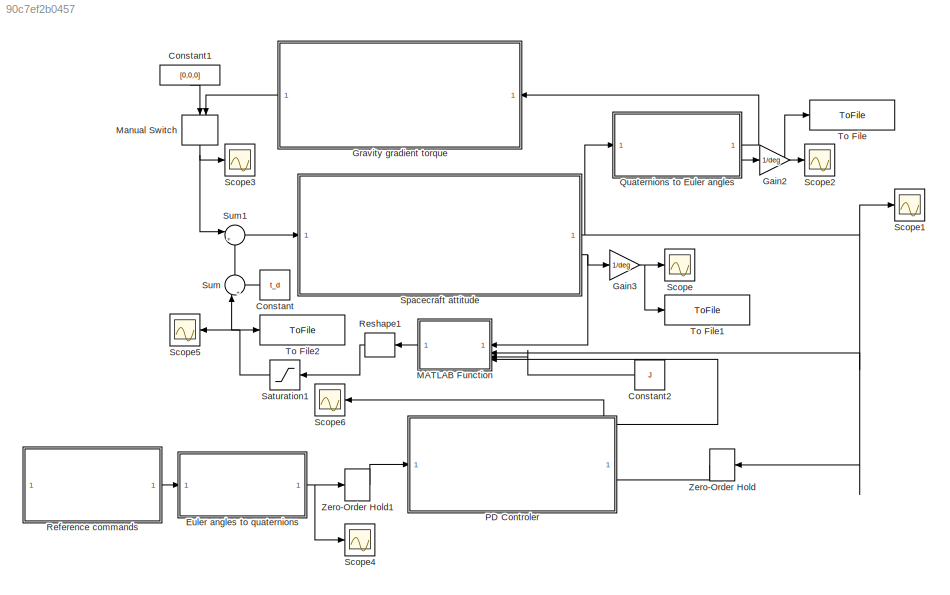
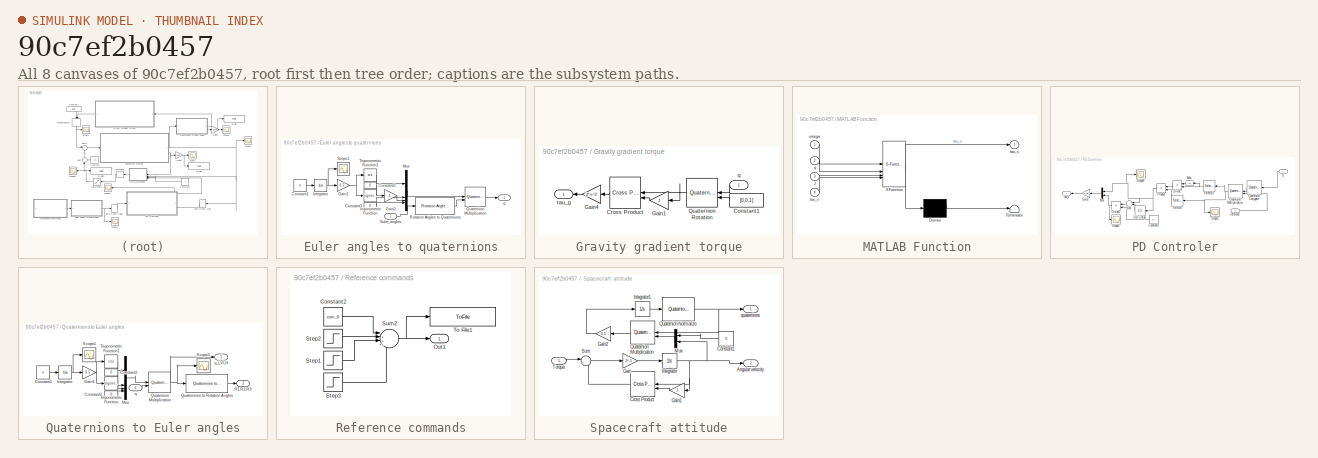
[diagram: thumbnail index - all 8 canvases of the model, root first then tree order]
MODEL slx_90c7ef2b0457
KIND model
CONFIG AbsTol = 1e-6
CONFIG EnableMultiTasking = off
CONFIG FixedStep = 0.1
CONFIG MaxStep = auto
CONFIG MinStep = auto
CONFIG RelTol = 1e-6
CONFIG SampleTimeConstraint = Unconstrained
CONFIG SolverName = ode8
CONFIG StartTime = 0.0
CONFIG StopTime = 1500
BLOCK [Constant] Constant
  Value = t_d
BLOCK [Constant] Constant1
  NameLocation = right
  Value = [0,0,0]
BLOCK [Constant] Constant2
  Value = J
BLOCK [SubSystem] Euler angles to quaternions
BLOCK [Constant] Euler angles to quaternions/Constant1
  Value = n
BLOCK [Constant] Euler angles to quaternions/Constant2
  Value = 0
BLOCK [Constant] Euler angles to quaternions/Constant3
  Value = 0
BLOCK [Inport] Euler angles to quaternions/Euler_angles
BLOCK [Gain] Euler angles to quaternions/Gain1
  Gain = 0.5
  Multiplication = Matrix(K*u)
BLOCK [Gain] Euler angles to quaternions/Gain2
  Gain = -1
  Multiplication = Matrix(K*u)
BLOCK [Integrator] Euler angles to quaternions/Integrator
BLOCK [Mux] Euler angles to quaternions/Mux
  DisplayOption = bar
BLOCK [Reference] Euler angles to quaternions/Quaternion Multiplication  REF=aerolibutil/Quaternion
Multiplication
  SourceBlock = aerolibutil/Quaternion\nMultiplication
  SourceType = Quaternion Multiplication
BLOCK [Reference] Euler angles to quaternions/Rotation Angles to Quaternions  REF=sharedtransform/Rotation Angles to Quaternions
  AttributesFormatString = Rotation Order: %<rotationOrder>
  LibrarySourceBlock = aerolibtransform2/Rotation Angles to Quaternions
  SourceBlock = sharedtransform/Rotation Angles to Quaternions
  SourceType = Ang2Quat
BLOCK [Scope] Euler angles to quaternions/Scope1
  Floating = off
  NumInputPorts = 1
  ScopeSpecificationString = Simulink.scopes.TimeScopeBlockCfg('CurrentConfiguration', extmgr.ConfigurationSet(extmgr.Configuration('Core','General UI',true),extmgr.Configuration('Core','Source UI',true),extmgr.Configuration('Sources','WiredSimulink',true,'DataLoggingVariableName','ScopeData6'),extmgr.Configuration('Visuals','Time Domain',true,'SerializedDisplays',{struct('MinYLimReal','-0.19879','MaxYLimReal','1.78915','YLab...<+1783ch>
BLOCK [Trigonometry] Euler angles to quaternions/Trigonometric Function
BLOCK [Trigonometry] Euler angles to quaternions/Trigonometric Function1
  Operator = cos
BLOCK [Outport] Euler angles to quaternions/q
BLOCK [Gain] Gain2
  Gain = 1/deg
  Multiplication = Matrix(K*u)
BLOCK [Gain] Gain3
  Gain = 1/deg
  Multiplication = Matrix(K*u)
BLOCK [SubSystem] Gravity gradient torque
BLOCK [Constant] Gravity gradient torque/Constant1
  Value = [0,0,1]
BLOCK [Reference] Gravity gradient torque/Cross Product  REF=matrix_library/Cross Product
  LibrarySourceBlock = simulink/Matrix\nOperations/Cross Product
  SourceBlock = matrix_library/Cross Product
  SourceType = CrossProduct
BLOCK [Gain] Gravity gradient torque/Gain1
  Gain = J
  Multiplication = Matrix(K*u)
BLOCK [Gain] Gravity gradient torque/Gain4
  Gain = 3*n.^2
  Multiplication = Matrix(K*u)
BLOCK [Reference] Gravity gradient torque/Quaternion Rotation  REF=aerolibutil/Quaternion
Rotation
  SourceBlock = aerolibutil/Quaternion\nRotation
  SourceType = Quaternion Rotation
BLOCK [Inport] Gravity gradient torque/q
  NameLocation = top
BLOCK [Outport] Gravity gradient torque/tau_g
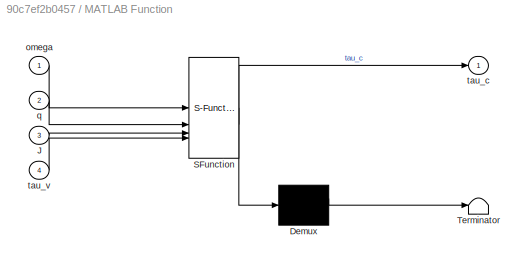
BLOCK [SubSystem] MATLAB Function
  ErrorFcn = Stateflow.Translate.translate
  PermitHierarchicalResolution = ExplicitOnly
  SFBlockType = MATLAB Function
  TreatAsAtomicUnit = on
BLOCK [Demux] MATLAB Function/ Demux 
  Outputs = 1
BLOCK [S-Function] MATLAB Function/ SFunction 
  EnableBusSupport = on
  FunctionName = sf_sfun
  PortCounts = [4 2]
  SFcnIsStateOwnerBlock = off
  SFunctionDeploymentMode = off
  Tag = Stateflow S-Function 2
BLOCK [Terminator] MATLAB Function/ Terminator 
BLOCK [Inport] MATLAB Function/J
  Port = 3
BLOCK [Inport] MATLAB Function/omega
BLOCK [Inport] MATLAB Function/q
  Port = 2
BLOCK [Outport] MATLAB Function/tau_c
BLOCK [Inport] MATLAB Function/tau_v
  Port = 4
BLOCK [ManualSwitch] Manual Switch
  CurrentSetting = 0
  NameLocation = left
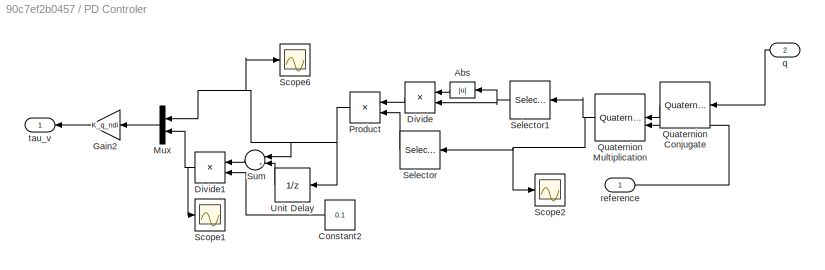
BLOCK [SubSystem] PD Controler
  PortSchema = {"entries":[{"content":{"sides":[{"content":{"connectorIds":["Out1","In1"]},"type":"ConnectorPlacement.EquallySpacedRectSide","uuid":"abb5c05f-55a7-4b23-99fb-718b12e347b5"},{"content":{"connectorIds":["In2"],"side":"RIGHT"},"type":"ConnectorPlacement.EquallySpacedRectSide","uuid":"ecafc2a8-a004-41b4-9c63-c5f60123672e"},{"content":{"side":"TOP"},"type":"ConnectorPlacement.EquallySpacedRectSide","uu...<+228ch>
BLOCK [Abs] PD Controler/Abs
  SaturateOnIntegerOverflow = off
BLOCK [Constant] PD Controler/Constant2
  Value = 0.1
BLOCK [Product] PD Controler/Divide
  Inputs = */
BLOCK [Product] PD Controler/Divide1
  Inputs = */
BLOCK [Gain] PD Controler/Gain2
  Gain = K_q_ndi
  Multiplication = Matrix(K*u)
BLOCK [Mux] PD Controler/Mux
  DisplayOption = bar
  Inputs = 2
BLOCK [Product] PD Controler/Product
BLOCK [Reference] PD Controler/Quaternion Conjugate  REF=aerolibutil/Quaternion
Conjugate
  SourceBlock = aerolibutil/Quaternion\nConjugate
  SourceType = Quaternion Conjugate
BLOCK [Reference] PD Controler/Quaternion Multiplication  REF=aerolibutil/Quaternion
Multiplication
  SourceBlock = aerolibutil/Quaternion\nMultiplication
  SourceType = Quaternion Multiplication
BLOCK [Scope] PD Controler/Scope1
  Floating = off
  NumInputPorts = 1
  ScopeSpecificationString = Simulink.scopes.TimeScopeBlockCfg('CurrentConfiguration', extmgr.ConfigurationSet(extmgr.Configuration('Core','General UI',true),extmgr.Configuration('Core','Source UI',true),extmgr.Configuration('Sources','WiredSimulink',true,'DataLoggingVariableName','ScopeData3'),extmgr.Configuration('Visuals','Time Domain',true,'SerializedDisplays',{struct('MinYLimReal','-12.21483','MaxYLimReal','20.04772','YL...<+1892ch>
BLOCK [Scope] PD Controler/Scope2
  Floating = off
  NumInputPorts = 1
  ScopeSpecificationString = Simulink.scopes.TimeScopeBlockCfg('CurrentConfiguration', extmgr.ConfigurationSet(extmgr.Configuration('Core','General UI',true),extmgr.Configuration('Core','Source UI',true),extmgr.Configuration('Sources','WiredSimulink',true,'DataLoggingVariableName','ScopeData1'),extmgr.Configuration('Visuals','Time Domain',true,'SerializedDisplays',{struct('MinYLimReal','-1.21261','MaxYLimReal','1.2136','YLabe...<+1966ch>
BLOCK [Scope] PD Controler/Scope6
  Floating = off
  NumInputPorts = 1
  ScopeSpecificationString = Simulink.scopes.TimeScopeBlockCfg('CurrentConfiguration', extmgr.ConfigurationSet(extmgr.Configuration('Core','General UI',true),extmgr.Configuration('Core','Source UI',true),extmgr.Configuration('Sources','WiredSimulink',true,'DataLoggingVariableName','ScopeData2'),extmgr.Configuration('Visuals','Time Domain',true,'SerializedDisplays',{struct('MinYLimReal','-1.21261','MaxYLimReal','1.2136','YLabe...<+1882ch>
BLOCK [Selector] PD Controler/Selector
  IndexOptions = Index vector (dialog)
  Indices = [2 3 4]
  InputPortWidth = 4
  NameLocation = top
  OutputSizes = 1
BLOCK [Selector] PD Controler/Selector1
  IndexOptions = Index vector (dialog)
  Indices = [1]
  InputPortWidth = 4
  NameLocation = top
  OutputSizes = 1
BLOCK [Sum] PD Controler/Sum
  Inputs = |+-
BLOCK [UnitDelay] PD Controler/Unit Delay
  HasFrameUpgradeWarning = on
  SampleTime = 0.1
BLOCK [Inport] PD Controler/q
  Port = 2
BLOCK [Inport] PD Controler/reference
BLOCK [Outport] PD Controler/tau_v
BLOCK [SubSystem] Quaternions to Euler angles
BLOCK [Constant] Quaternions to Euler angles/Constant1
  Value = n
BLOCK [Constant] Quaternions to Euler angles/Constant2
  Value = 0
BLOCK [Constant] Quaternions to Euler angles/Constant3
  Value = 0
BLOCK [Gain] Quaternions to Euler angles/Gain1
  Gain = 0.5
  Multiplication = Matrix(K*u)
BLOCK [Integrator] Quaternions to Euler angles/Integrator
BLOCK [Mux] Quaternions to Euler angles/Mux
  DisplayOption = bar
BLOCK [Reference] Quaternions to Euler angles/Quaternion Multiplication  REF=aerolibutil/Quaternion
Multiplication
  SourceBlock = aerolibutil/Quaternion\nMultiplication
  SourceType = Quaternion Multiplication
BLOCK [Reference] Quaternions to Euler angles/Quaternions to Rotation Angles  REF=sharedtransform/Quaternions to Rotation Angles
  AttributesFormatString = Rotation Order: %<rotationOrder>
  LibrarySourceBlock = aerolibtransform2/Quaternions to Rotation Angles
  SourceBlock = sharedtransform/Quaternions to Rotation Angles
  SourceType = Quat2Ang
BLOCK [Outport] Quaternions to Euler angles/R1,R2,R3
  Port = 2
BLOCK [Scope] Quaternions to Euler angles/Scope1
  Floating = off
  NumInputPorts = 1
  ScopeSpecificationString = Simulink.scopes.TimeScopeBlockCfg('CurrentConfiguration', extmgr.ConfigurationSet(extmgr.Configuration('Core','General UI',true),extmgr.Configuration('Core','Source UI',true),extmgr.Configuration('Sources','WiredSimulink',true,'DataLoggingVariableName','ScopeData6'),extmgr.Configuration('Visuals','Time Domain',true,'SerializedDisplays',{struct('MinYLimReal','-0.19879','MaxYLimReal','1.78915','YLab...<+1783ch>
BLOCK [Scope] Quaternions to Euler angles/Scope3
  Floating = off
  NumInputPorts = 1
  ScopeSpecificationString = Simulink.scopes.TimeScopeBlockCfg('CurrentConfiguration', extmgr.ConfigurationSet(extmgr.Configuration('Core','General UI',true),extmgr.Configuration('Core','Source UI',true),extmgr.Configuration('Sources','WiredSimulink',true,'DataLoggingVariableName','ScopeData3'),extmgr.Configuration('Visuals','Time Domain',true,'SerializedDisplays',{struct('MinYLimReal','-1.21447','MaxYLimReal','1.24605','YLab...<+1934ch>
BLOCK [Trigonometry] Quaternions to Euler angles/Trigonometric Function
BLOCK [Trigonometry] Quaternions to Euler angles/Trigonometric Function1
  Operator = cos
BLOCK [Inport] Quaternions to Euler angles/q
BLOCK [Outport] Quaternions to Euler angles/q_LVLH
BLOCK [SubSystem] Reference commands
BLOCK [Constant] Reference commands/Constant2
  Value = com_0
BLOCK [Outport] Reference commands/Out1
BLOCK [Step] Reference commands/Step1
  After = com_2 - com_1
  SampleTime = 0
  Time = 500.1
  VectorParams1D = off
BLOCK [Step] Reference commands/Step2
  After = com_1 - com_0
  SampleTime = 0
  Time = 100
  VectorParams1D = off
BLOCK [Step] Reference commands/Step3
  After = com_3 - com_2
  SampleTime = 0
  Time = 900.1
  VectorParams1D = off
BLOCK [Sum] Reference commands/Sum2
  Inputs = |++++
BLOCK [ToFile] Reference commands/To File1
  Filename = Reference_commands.mat
  MatrixName = values
  SaveFormat = Timeseries
BLOCK [Reshape] Reshape1
BLOCK [Saturate] Saturation1
  LowerLimit = -1.5
  NameLocation = top
  UpperLimit = 1.5
BLOCK [Scope] Scope
  Floating = off
  NumInputPorts = 1
  ScopeSpecificationString = Simulink.scopes.TimeScopeBlockCfg('CurrentConfiguration', extmgr.ConfigurationSet(extmgr.Configuration('Core','General UI',true),extmgr.Configuration('Core','Source UI',true),extmgr.Configuration('Sources','WiredSimulink',true),extmgr.Configuration('Visuals','Time Domain',true,'SerializedDisplays',{struct('MinYLimReal','-77.71981','MaxYLimReal','65.40638','YLabelReal','','MinYLimMag','0.00000','Ma...<+1834ch>
BLOCK [Scope] Scope1
  Floating = off
  NumInputPorts = 1
  ScopeSpecificationString = Simulink.scopes.TimeScopeBlockCfg('CurrentConfiguration', extmgr.ConfigurationSet(extmgr.Configuration('Core','General UI',true),extmgr.Configuration('Core','Source UI',true),extmgr.Configuration('Sources','WiredSimulink',true,'DataLoggingVariableName','ScopeData1'),extmgr.Configuration('Visuals','Time Domain',true,'SerializedDisplays',{struct('MinYLimReal','-1.02252','MaxYLimReal','1.22464','YLab...<+1922ch>
BLOCK [Scope] Scope2
  Floating = off
  NumInputPorts = 1
  ScopeSpecificationString = Simulink.scopes.TimeScopeBlockCfg('CurrentConfiguration', extmgr.ConfigurationSet(extmgr.Configuration('Core','General UI',true),extmgr.Configuration('Core','Source UI',true),extmgr.Configuration('Sources','WiredSimulink',true,'DataLoggingVariableName','ScopeData2'),extmgr.Configuration('Visuals','Time Domain',true,'SerializedDisplays',{struct('MinYLimReal','-94.74264','MaxYLimReal','94.13588','YL...<+1872ch>
BLOCK [Scope] Scope3
  Floating = off
  NumInputPorts = 1
  ScopeSpecificationString = Simulink.scopes.TimeScopeBlockCfg('CurrentConfiguration', extmgr.ConfigurationSet(extmgr.Configuration('Core','General UI',true),extmgr.Configuration('Core','Source UI',true),extmgr.Configuration('Sources','WiredSimulink',true,'DataLoggingVariableName','ScopeData4'),extmgr.Configuration('Visuals','Time Domain',true,'SerializedDisplays',{struct('MinYLimReal','-0.0000021','MaxYLimReal','0.0000021','...<+1919ch>
BLOCK [Scope] Scope4
  Floating = off
  NumInputPorts = 1
  ScopeSpecificationString = Simulink.scopes.TimeScopeBlockCfg('CurrentConfiguration', extmgr.ConfigurationSet(extmgr.Configuration('Core','General UI',true),extmgr.Configuration('Core','Source UI',true),extmgr.Configuration('Sources','WiredSimulink',true,'DataLoggingVariableName','ScopeData1'),extmgr.Configuration('Visuals','Time Domain',true,'SerializedDisplays',{struct('MinYLimReal','-1.02171','MaxYLimReal','1.22463','YLab...<+1972ch>
BLOCK [Scope] Scope5
  Floating = off
  NumInputPorts = 1
  ScopeSpecificationString = Simulink.scopes.TimeScopeBlockCfg('CurrentConfiguration', extmgr.ConfigurationSet(extmgr.Configuration('Core','General UI',true),extmgr.Configuration('Core','Source UI',true),extmgr.Configuration('Sources','WiredSimulink',true,'DataLoggingVariableName','ScopeData1'),extmgr.Configuration('Visuals','Time Domain',true,'SerializedDisplays',{struct('MinYLimReal','-1.875','MaxYLimReal','1.875','YLabelRe...<+1884ch>
BLOCK [Scope] Scope6
  Floating = off
  NumInputPorts = 1
  ScopeSpecificationString = Simulink.scopes.TimeScopeBlockCfg('CurrentConfiguration', extmgr.ConfigurationSet(extmgr.Configuration('Core','General UI',true),extmgr.Configuration('Core','Source UI',true),extmgr.Configuration('Sources','WiredSimulink',true,'DataLoggingVariableName','ScopeData1'),extmgr.Configuration('Visuals','Time Domain',true,'SerializedDisplays',{struct('MinYLimReal','-93.5185','MaxYLimReal','69.14311','YLa...<+1901ch>
BLOCK [SubSystem] Spacecraft attitude
BLOCK [Outport] Spacecraft attitude/Angular velocity
  Port = 2
BLOCK [Constant] Spacecraft attitude/Constant1
  Value = 0
BLOCK [Reference] Spacecraft attitude/Cross Product  REF=matrix_library/Cross Product
  LibrarySourceBlock = simulink/Matrix\nOperations/Cross Product
  SourceBlock = matrix_library/Cross Product
  SourceType = CrossProduct
BLOCK [Gain] Spacecraft attitude/Gain
  Gain = J^-1
  Multiplication = Matrix(K*u)
BLOCK [Gain] Spacecraft attitude/Gain1
  Gain = J
  Multiplication = Matrix(K*u)
BLOCK [Gain] Spacecraft attitude/Gain2
  Gain = 0.5
  Multiplication = Matrix(K*u)
BLOCK [Integrator] Spacecraft attitude/Integrator
  InitialCondition = w
BLOCK [Integrator] Spacecraft attitude/Integrator1
  InitialCondition = init_q
BLOCK [Mux] Spacecraft attitude/Mux
  DisplayOption = bar
  Inputs = 2
BLOCK [Reference] Spacecraft attitude/Quaternion Multiplication  REF=aerolibutil/Quaternion
Multiplication
  SourceBlock = aerolibutil/Quaternion\nMultiplication
  SourceType = Quaternion Multiplication
BLOCK [Reference] Spacecraft attitude/Quaternion Normalize  REF=sharedutil/Quaternion
Normalize
  LibrarySourceBlock = aerolibutil/Quaternion\nNormalize
  SourceBlock = sharedutil/Quaternion\nNormalize
  SourceType = Quaternion Normalize
BLOCK [Sum] Spacecraft attitude/Sum
  Inputs = |+-
  NameLocation = top
BLOCK [Inport] Spacecraft attitude/Torque
BLOCK [Outport] Spacecraft attitude/quaternions
BLOCK [Sum] Sum
  Inputs = |++
  NameLocation = right
BLOCK [Sum] Sum1
  Inputs = |++
BLOCK [ToFile] To File
  Filename = Euler_angles.mat
  MatrixName = values
  SaveFormat = Timeseries
BLOCK [ToFile] To File1
  Filename = Angular_velocity.mat
  MatrixName = values
  SaveFormat = Timeseries
BLOCK [ToFile] To File2
  Filename = Torques.mat
  MatrixName = values
  SaveFormat = Timeseries
BLOCK [ZeroOrderHold] Zero-Order Hold
  SampleTime = 0.1
BLOCK [ZeroOrderHold] Zero-Order Hold1
  SampleTime = 0.1
LINE Constant1:1 -> Manual Switch:1
LINE Constant2:1 -> MATLAB Function:3
LINE Constant:1 -> Sum:2
LINE Euler angles to quaternions/Constant1:1 -> Euler angles to quaternions/Integrator:1
LINE Euler angles to quaternions/Constant2:1 -> Euler angles to quaternions/Mux:2
LINE Euler angles to quaternions/Constant3:1 -> Euler angles to quaternions/Mux:4
LINE Euler angles to quaternions/Euler_angles:1 -> Euler angles to quaternions/Rotation Angles to Quaternions:1
NET Euler angles to quaternions/Gain1:1 -> Euler angles to quaternions/Trigonometric Function1:1, Euler angles to quaternions/Trigonometric Function:1
LINE Euler angles to quaternions/Gain2:1 -> Euler angles to quaternions/Mux:3
NET Euler angles to quaternions/Integrator:1 -> Euler angles to quaternions/Gain1:1, Euler angles to quaternions/Scope1:1
LINE Euler angles to quaternions/Mux:1 -> Euler angles to quaternions/Quaternion Multiplication:1
LINE Euler angles to quaternions/Quaternion Multiplication:1 -> Euler angles to quaternions/q:1
LINE Euler angles to quaternions/Rotation Angles to Quaternions:1 -> Euler angles to quaternions/Quaternion Multiplication:2
LINE Euler angles to quaternions/Trigonometric Function1:1 -> Euler angles to quaternions/Mux:1
LINE Euler angles to quaternions/Trigonometric Function:1 -> Euler angles to quaternions/Gain2:1
NET Euler angles to quaternions:1 -> Scope4:1, Zero-Order Hold1:1
NET Gain2:1 -> Scope2:1, To File:1
NET Gain3:1 -> Scope:1, To File1:1
LINE Gravity gradient torque/Constant1:1 -> Gravity gradient torque/Quaternion Rotation:2
LINE Gravity gradient torque/Cross Product:1 -> Gravity gradient torque/Gain4:1
LINE Gravity gradient torque/Gain1:1 -> Gravity gradient torque/Cross Product:2
LINE Gravity gradient torque/Gain4:1 -> Gravity gradient torque/tau_g:1
NET Gravity gradient torque/Quaternion Rotation:1 -> Gravity gradient torque/Cross Product:1, Gravity gradient torque/Gain1:1
LINE Gravity gradient torque/q:1 -> Gravity gradient torque/Quaternion Rotation:1
LINE Gravity gradient torque:1 -> Manual Switch:2
LINE MATLAB Function:1 -> Reshape1:1
NET Manual Switch:1 -> Scope3:1, Sum1:1
LINE PD Controler/Abs:1 -> PD Controler/Divide:1
LINE PD Controler/Constant2:1 -> PD Controler/Divide1:2
NET PD Controler/Divide1:1 -> PD Controler/Mux:2, PD Controler/Scope1:1
LINE PD Controler/Divide:1 -> PD Controler/Product:1
LINE PD Controler/Gain2:1 -> PD Controler/tau_v:1
LINE PD Controler/Mux:1 -> PD Controler/Gain2:1
NET PD Controler/Product:1 -> PD Controler/Mux:1, PD Controler/Scope6:1, PD Controler/Sum:1, PD Controler/Unit Delay:1
LINE PD Controler/Quaternion Conjugate:1 -> PD Controler/Quaternion Multiplication:1
NET PD Controler/Quaternion Multiplication:1 -> PD Controler/Scope2:1, PD Controler/Selector1:1, PD Controler/Selector:1
NET PD Controler/Selector1:1 -> PD Controler/Abs:1, PD Controler/Divide:2
LINE PD Controler/Selector:1 -> PD Controler/Product:2
LINE PD Controler/Sum:1 -> PD Controler/Divide1:1
LINE PD Controler/Unit Delay:1 -> PD Controler/Sum:2
LINE PD Controler/q:1 -> PD Controler/Quaternion Conjugate:1
LINE PD Controler/reference:1 -> PD Controler/Quaternion Multiplication:2
NET PD Controler:1 -> MATLAB Function:4, Scope6:1
LINE Quaternions to Euler angles/Constant1:1 -> Quaternions to Euler angles/Integrator:1
LINE Quaternions to Euler angles/Constant2:1 -> Quaternions to Euler angles/Mux:2
LINE Quaternions to Euler angles/Constant3:1 -> Quaternions to Euler angles/Mux:4
NET Quaternions to Euler angles/Gain1:1 -> Quaternions to Euler angles/Trigonometric Function1:1, Quaternions to Euler angles/Trigonometric Function:1
NET Quaternions to Euler angles/Integrator:1 -> Quaternions to Euler angles/Gain1:1, Quaternions to Euler angles/Scope1:1
LINE Quaternions to Euler angles/Mux:1 -> Quaternions to Euler angles/Quaternion Multiplication:1
NET Quaternions to Euler angles/Quaternion Multiplication:1 -> Quaternions to Euler angles/Quaternions to Rotation Angles:1, Quaternions to Euler angles/Scope3:1, Quaternions to Euler angles/q_LVLH:1
LINE Quaternions to Euler angles/Quaternions to Rotation Angles:1 -> Quaternions to Euler angles/R1,R2,R3:1
LINE Quaternions to Euler angles/Trigonometric Function1:1 -> Quaternions to Euler angles/Mux:1
LINE Quaternions to Euler angles/Trigonometric Function:1 -> Quaternions to Euler angles/Mux:3
LINE Quaternions to Euler angles/q:1 -> Quaternions to Euler angles/Quaternion Multiplication:2
LINE Quaternions to Euler angles:1 -> Gravity gradient torque:1
LINE Quaternions to Euler angles:2 -> Gain2:1
LINE Reference commands/Constant2:1 -> Reference commands/Sum2:1
LINE Reference commands/Step1:1 -> Reference commands/Sum2:3
LINE Reference commands/Step2:1 -> Reference commands/Sum2:2
LINE Reference commands/Step3:1 -> Reference commands/Sum2:4
NET Reference commands/Sum2:1 -> Reference commands/Out1:1, Reference commands/To File1:1
LINE Reference commands:1 -> Euler angles to quaternions:1
LINE Reshape1:1 -> Saturation1:1
NET Saturation1:1 -> Scope5:1, Sum:1, To File2:1
LINE Spacecraft attitude/Constant1:1 -> Spacecraft attitude/Mux:1
LINE Spacecraft attitude/Cross Product:1 -> Spacecraft attitude/Sum:2
LINE Spacecraft attitude/Gain1:1 -> Spacecraft attitude/Cross Product:2
LINE Spacecraft attitude/Gain2:1 -> Spacecraft attitude/Integrator1:1
LINE Spacecraft attitude/Gain:1 -> Spacecraft attitude/Integrator:1
LINE Spacecraft attitude/Integrator1:1 -> Spacecraft attitude/Quaternion Normalize:1
NET Spacecraft attitude/Integrator:1 -> Spacecraft attitude/Angular velocity:1, Spacecraft attitude/Cross Product:1, Spacecraft attitude/Gain1:1, Spacecraft attitude/Mux:2
LINE Spacecraft attitude/Mux:1 -> Spacecraft attitude/Quaternion Multiplication:2
LINE Spacecraft attitude/Quaternion Multiplication:1 -> Spacecraft attitude/Gain2:1
NET Spacecraft attitude/Quaternion Normalize:1 -> Spacecraft attitude/Quaternion Multiplication:1, Spacecraft attitude/quaternions:1
LINE Spacecraft attitude/Sum:1 -> Spacecraft attitude/Gain:1
LINE Spacecraft attitude/Torque:1 -> Spacecraft attitude/Sum:1
NET Spacecraft attitude:1 -> MATLAB Function:2, Quaternions to Euler angles:1, Scope1:1, Zero-Order Hold:1
NET Spacecraft attitude:2 -> Gain3:1, MATLAB Function:1
LINE Sum1:1 -> Spacecraft attitude:1
LINE Sum:1 -> Sum1:2
LINE Zero-Order Hold1:1 -> PD Controler:1
LINE Zero-Order Hold:1 -> PD Controler:2
note: NET lines group one-source signal fan-out (src -> all destinations, sorted); 1:1 wires keep LINE
CHART MATLAB Function states=1 transitions=1
  STATE_LABEL 'eML_blk_kernel()'
  STATE_LABEL 'SCRIPT:\nfunction tau_c = NDI(omega,q,J, tau_v)\nq_vec = q(2:end);\nq_ext= [0,-q_vec(3), q_vec(2); q_vec(3),0,-q_vec(1); -q_vec(2), q_vec(1), 0];\nq_0 = q(1);\nM = 0.5*(q_0*inv(J) + q_ext*inv(J)); %The additional term was added because when q_0 aproachs 0 matlab started having significant errors in calculating the inverse matrix. This way it finds an inverse which is proportional to the identity and fi...<+96ch>'
CHART  states=0 transitions=0
